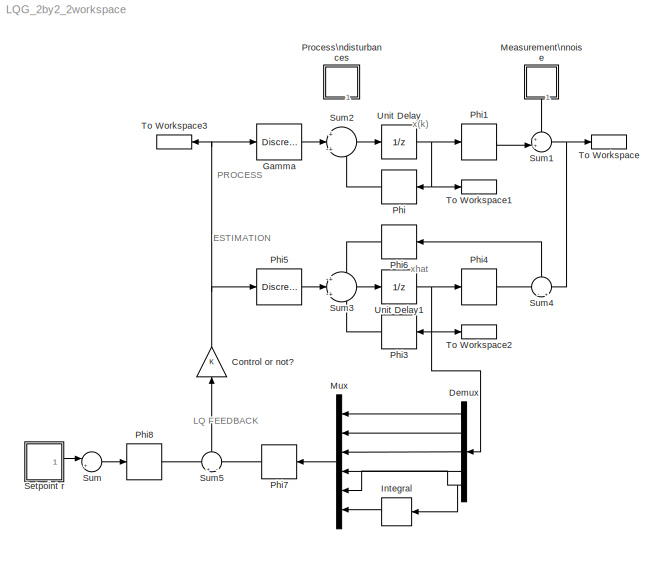
MODEL LQG_2by2_2workspace
KIND model
BLOCK [Gain] Control or not?
  OutDataTypeStr = Inherit: Inherit via internal rule
  ParamDataTypeStr = Inherit: Inherit via internal rule
  SID = 1
  SaturateOnIntegerOverflow = off
BLOCK [Demux] Demux
  DisplayOption = bar
  Outputs = 5
  Ports = [1, 5]
  SID = 63
BLOCK [DiscreteStateSpace] Gamma
  A = []
  B = []
  C = []
  D = Bd
  SID = 2
  SampleTime = -1
BLOCK [DiscreteIntegrator] Integral
  ICPrevOutput = DiscIntNeverNeededParam
  ICPrevScaledInput = DiscIntNeverNeededParam
  Ports = [1, 1]
  SID = 64
  SampleTime = -1
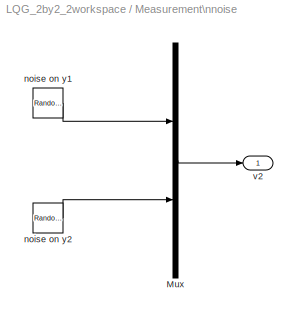
BLOCK [SubSystem] Measurement\nnoise
  Ports = [0, 1]
  RequestExecContextInheritance = off
  SID = 3
BLOCK [Mux] Measurement\nnoise/Mux
  DisplayOption = bar
  Inputs = 2
  Ports = [2, 1]
  SID = 4
BLOCK [RandomNumber] Measurement\nnoise/noise on y1
  SID = 5
  SampleTime = h
  Seed = 5
  Variance = QN(1,1)
BLOCK [RandomNumber] Measurement\nnoise/noise on y2
  SID = 6
  SampleTime = h
  Seed = 4
  Variance = QN(2,2)
BLOCK [Outport] Measurement\nnoise/v2
  IconDisplay = Port number
  SID = 7
BLOCK [Mux] Mux
  DisplayOption = bar
  Inputs = 6
  Ports = [6, 1]
  SID = 65
BLOCK [DiscreteStateSpace] Phi
  A = []
  B = []
  C = []
  D = Ad
  SID = 8
  SampleTime = -1
BLOCK [DiscreteStateSpace] Phi1
  A = []
  B = []
  C = []
  D = C
  SID = 9
  SampleTime = -1
BLOCK [DiscreteStateSpace] Phi3
  A = []
  B = []
  C = []
  D = Ad
  SID = 10
  SampleTime = -1
BLOCK [DiscreteStateSpace] Phi4
  A = []
  B = []
  C = []
  D = C
  SID = 11
  SampleTime = -1
BLOCK [DiscreteStateSpace] Phi5
  A = []
  B = []
  C = []
  D = Bd
  SID = 12
  SampleTime = -1
BLOCK [DiscreteStateSpace] Phi6
  A = []
  B = []
  C = []
  D = K
  SID = 13
  SampleTime = -1
BLOCK [DiscreteStateSpace] Phi7
  A = []
  B = []
  C = []
  D = L
  SID = 14
  SampleTime = -1
BLOCK [DiscreteStateSpace] Phi8
  A = []
  B = []
  C = []
  D = K_FF
  SID = 15
  SampleTime = -1
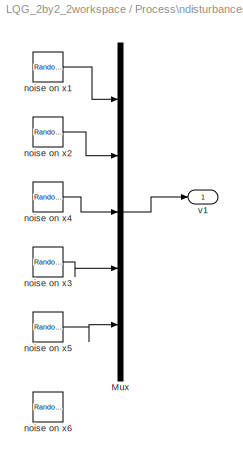
BLOCK [SubSystem] Process\ndisturbances
  Ports = [0, 1]
  RequestExecContextInheritance = off
  SID = 16
BLOCK [Mux] Process\ndisturbances/Mux
  DisplayOption = bar
  Inputs = 5
  Ports = [5, 1]
  SID = 17
BLOCK [RandomNumber] Process\ndisturbances/noise on x1
  SID = 18
  SampleTime = h
  Seed = 3
  Variance = 0
BLOCK [RandomNumber] Process\ndisturbances/noise on x2
  SID = 19
  SampleTime = h
  Seed = 2
  Variance = 0
BLOCK [RandomNumber] Process\ndisturbances/noise on x3
  SID = 43
  SampleTime = h
  Seed = 3
  Variance = 0
BLOCK [RandomNumber] Process\ndisturbances/noise on x4
  SID = 44
  SampleTime = h
  Seed = 2
  Variance = 0
BLOCK [RandomNumber] Process\ndisturbances/noise on x5
  SID = 45
  SampleTime = h
  Seed = 2
  Variance = RN(1,1)
BLOCK [RandomNumber] Process\ndisturbances/noise on x6
  SID = 66
  SampleTime = h
  Seed = 2
  Variance = RN(2,2)
BLOCK [Outport] Process\ndisturbances/v1
  IconDisplay = Port number
  SID = 20
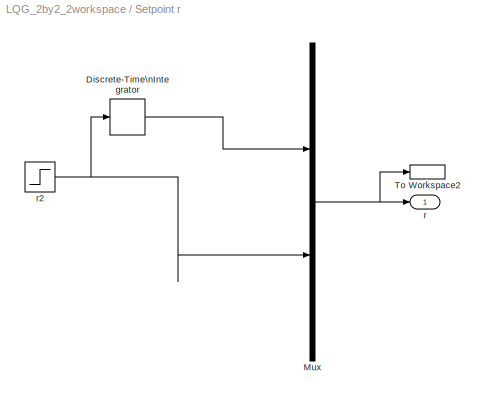
BLOCK [SubSystem] Setpoint r
  Ports = [0, 1]
  RequestExecContextInheritance = off
  SID = 21
BLOCK [DiscreteIntegrator] Setpoint r/Discrete-Time\nIntegrator
  ICPrevOutput = DiscIntNeverNeededParam
  ICPrevScaledInput = DiscIntNeverNeededParam
  InitialConditionSetting = Auto
  Ports = [1, 1]
  SID = 69
  SampleTime = -1
BLOCK [Mux] Setpoint r/Mux
  DisplayOption = bar
  Inputs = 2
  Ports = [2, 1]
  SID = 22
BLOCK [ToWorkspace] Setpoint r/To Workspace2
  MaxDataPoints = inf
  Ports = [1]
  SID = 23
  SampleTime = -1
  VariableName = r
BLOCK [Outport] Setpoint r/r
  IconDisplay = Port number
  SID = 26
BLOCK [Step] Setpoint r/r2
  After = 100
  Before = 10
  SID = 25
  SampleTime = h
  Time = 5
BLOCK [Sum] Sum
  IconShape = round
  InputSameDT = off
  Inputs = |+-
  OutDataTypeStr = Inherit: Inherit via internal rule
  Ports = [2, 1]
  SID = 71
  SaturateOnIntegerOverflow = off
BLOCK [Sum] Sum1
  IconShape = round
  InputSameDT = off
  Inputs = ++|
  OutDataTypeStr = Inherit: Inherit via internal rule
  Ports = [2, 1]
  SID = 27
  SaturateOnIntegerOverflow = off
BLOCK [Sum] Sum2
  IconShape = round
  InputSameDT = off
  Inputs = +|+|+
  OutDataTypeStr = Inherit: Inherit via internal rule
  Ports = [3, 1]
  SID = 28
  SaturateOnIntegerOverflow = off
BLOCK [Sum] Sum3
  IconShape = round
  InputSameDT = off
  Inputs = +|+|+
  OutDataTypeStr = Inherit: Inherit via internal rule
  Ports = [3, 1]
  SID = 29
  SaturateOnIntegerOverflow = off
BLOCK [Sum] Sum4
  IconShape = round
  InputSameDT = off
  Inputs = -|+
  OutDataTypeStr = Inherit: Inherit via internal rule
  Ports = [2, 1]
  SID = 30
  SaturateOnIntegerOverflow = off
BLOCK [Sum] Sum5
  IconShape = round
  InputSameDT = off
  Inputs = +|-
  OutDataTypeStr = Inherit: Inherit via internal rule
  Ports = [2, 1]
  SID = 31
  SaturateOnIntegerOverflow = off
BLOCK [ToWorkspace] To Workspace
  MaxDataPoints = inf
  Ports = [1]
  SID = 32
  SampleTime = -1
  VariableName = y
BLOCK [ToWorkspace] To Workspace1
  MaxDataPoints = inf
  Ports = [1]
  SID = 33
  SampleTime = -1
  VariableName = x
BLOCK [ToWorkspace] To Workspace2
  MaxDataPoints = inf
  Ports = [1]
  SID = 34
  SampleTime = -1
  VariableName = xhat
BLOCK [ToWorkspace] To Workspace3
  MaxDataPoints = inf
  Ports = [1]
  SID = 35
  SampleTime = -1
  VariableName = u
BLOCK [UnitDelay] Unit Delay
  HasFrameUpgradeWarning = on
  SID = 36
  SampleTime = -1
BLOCK [UnitDelay] Unit Delay1
  HasFrameUpgradeWarning = on
  SID = 37
  SampleTime = -1
ANNOTATION (root): ESTIMATION
ANNOTATION (root): LQ FEEDBACK
ANNOTATION (root): PROCESS
ANNOTATION (root): x(k)
ANNOTATION (root): xhat
NET Control or not?:1 -> Gamma:1, Phi5:1, To Workspace3:1
LINE Demux:1 -> Mux:1
LINE Demux:2 -> Mux:2
LINE Demux:3 -> Mux:3
LINE Demux:4 -> Mux:4
NET Demux:5 -> Integral:1, Mux:5
LINE Gamma:1 -> Sum2:2
LINE Integral:1 -> Mux:6
LINE Measurement\nnoise/Mux:1 -> Measurement\nnoise/v2:1
LINE Measurement\nnoise/noise on y1:1 -> Measurement\nnoise/Mux:1
LINE Measurement\nnoise/noise on y2:1 -> Measurement\nnoise/Mux:2
LINE Measurement\nnoise:1 -> Sum1:1
LINE Mux:1 -> Phi7:1
LINE Phi1:1 -> Sum1:2
LINE Phi3:1 -> Sum3:3
LINE Phi4:1 -> Sum4:1
LINE Phi5:1 -> Sum3:2
LINE Phi6:1 -> Sum3:1
LINE Phi7:1 -> Sum5:2
LINE Phi8:1 -> Sum5:1
LINE Phi:1 -> Sum2:3
LINE Process\ndisturbances/Mux:1 -> Process\ndisturbances/v1:1
LINE Process\ndisturbances/noise on x1:1 -> Process\ndisturbances/Mux:1
LINE Process\ndisturbances/noise on x2:1 -> Process\ndisturbances/Mux:2
LINE Process\ndisturbances/noise on x3:1 -> Process\ndisturbances/Mux:4
LINE Process\ndisturbances/noise on x4:1 -> Process\ndisturbances/Mux:3
LINE Process\ndisturbances/noise on x5:1 -> Process\ndisturbances/Mux:5
LINE Setpoint r/Discrete-Time\nIntegrator:1 -> Setpoint r/Mux:1
NET Setpoint r/Mux:1 -> Setpoint r/To Workspace2:1, Setpoint r/r:1
NET Setpoint r/r2:1 -> Setpoint r/Discrete-Time\nIntegrator:1, Setpoint r/Mux:2
LINE Setpoint r:1 -> Sum:1
NET Sum1:1 -> Sum4:2, To Workspace:1
LINE Sum2:1 -> Unit Delay:1
LINE Sum3:1 -> Unit Delay1:1
LINE Sum4:1 -> Phi6:1
LINE Sum5:1 -> Control or not?:1
LINE Sum:1 -> Phi8:1
NET Unit Delay1:1 -> Demux:1, Phi3:1, Phi4:1, To Workspace2:1
NET Unit Delay:1 -> Phi1:1, Phi:1, To Workspace1:1
note: NET lines group one-source signal fan-out (src -> all destinations, sorted); 1:1 wires keep LINE
